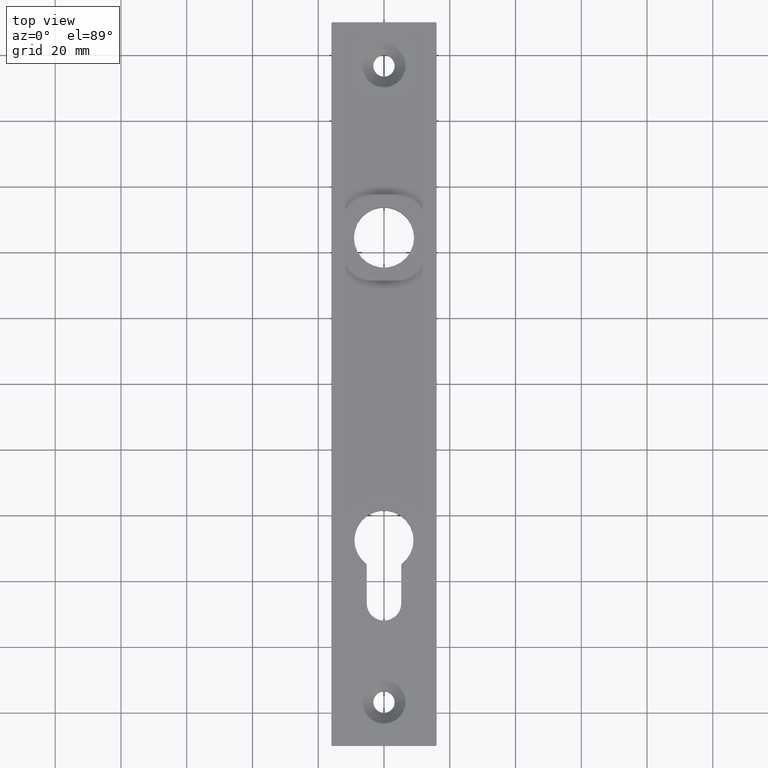
[diagram: clean part render]
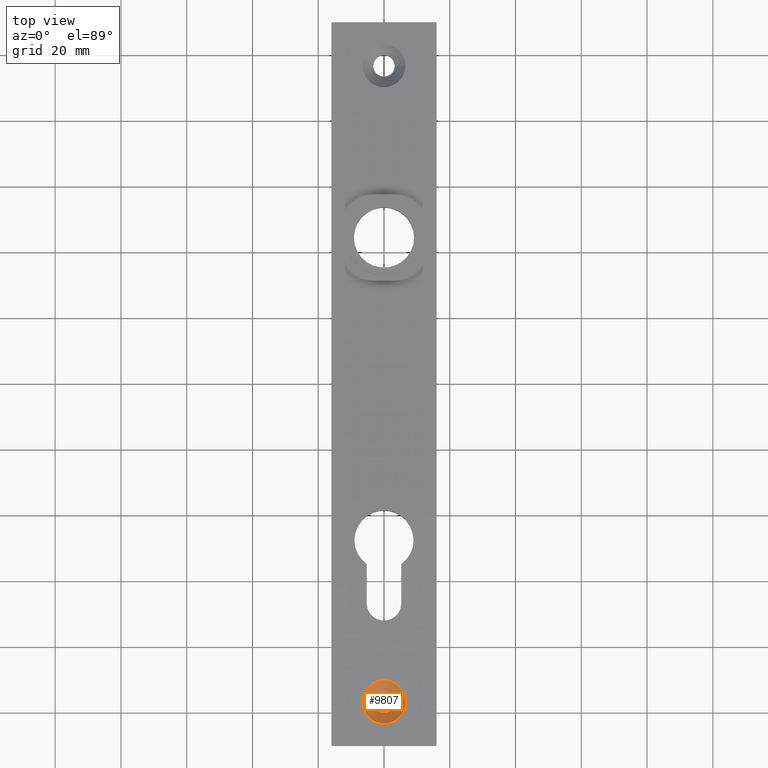
[diagram: same view with one face highlighted and labeled with its STEP entity id]
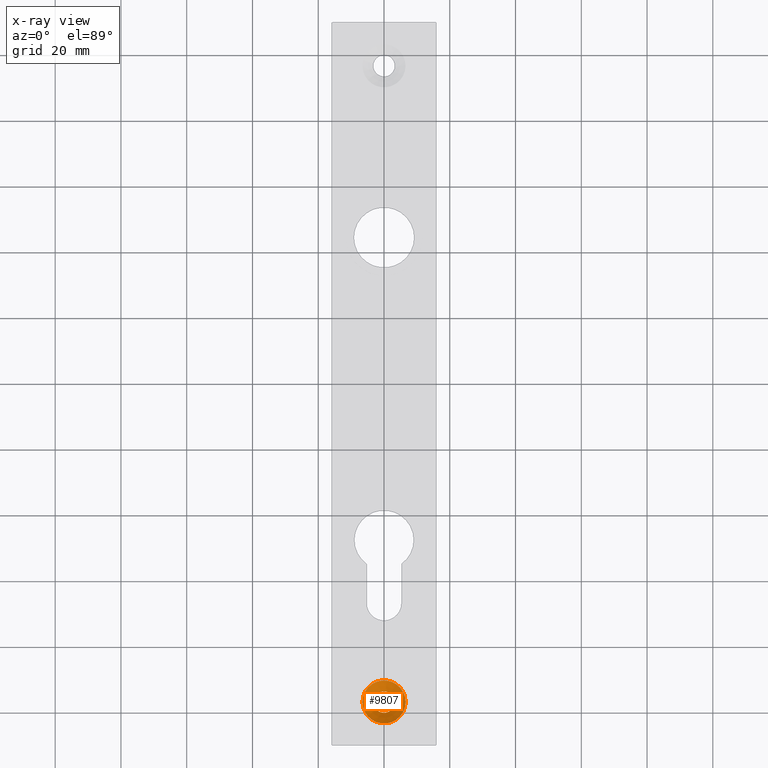
[diagram: x-ray of the same camera — body ghosted, the highlighted face saturated]
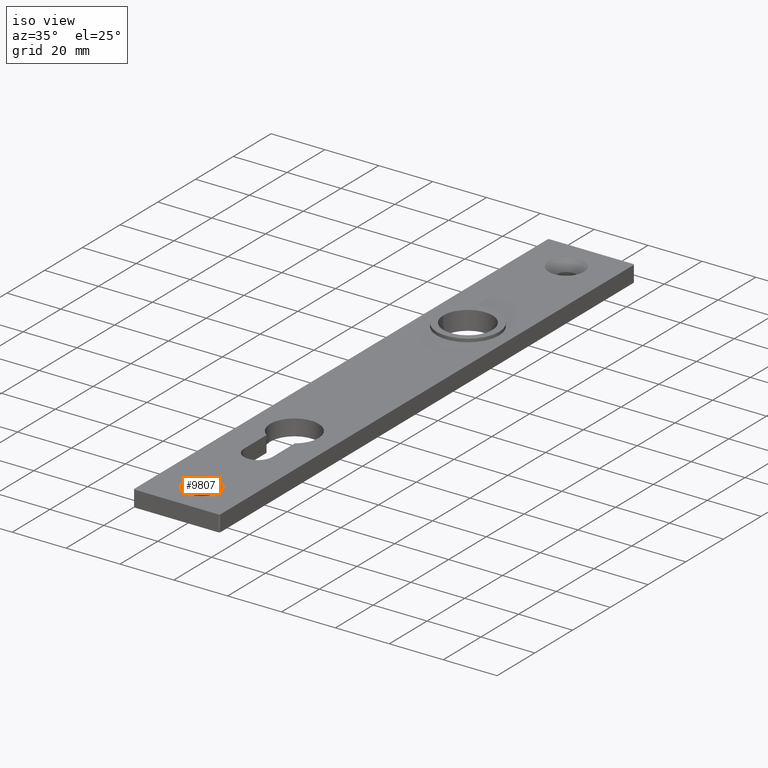
[diagram: same view with one face highlighted and labeled with its STEP entity id]
A machine part, top view. The second image highlights one B-rep face of the part: STEP entity #9807.
The next image is the same camera in x-ray: the body ghosted, the highlighted face saturated — about 0% of this face is hidden behind the body in this view.
A second angle (iso view) of the same face is appended — the face is thin or edge-on in the first view.
In plain terms, the highlighted conical surface has half-angle 45 deg.
Its self-contained STEP definition (entity closure, byte-faithful):
#376 = CARTESIAN_POINT ( 'NONE',  ( 0.0000000000000000000, -96.75000000000001400, 2.699999999999962400 ) ) ;
#822 = ORIENTED_EDGE ( 'NONE', *, *, #8629, .F. ) ;
#2166 = AXIS2_PLACEMENT_3D ( 'NONE', #3479, #7130, #7947 ) ;
#2226 = DIRECTION ( 'NONE',  ( 0.0000000000000000000, 0.0000000000000000000, 1.000000000000000000 ) ) ;
#2327 = CIRCLE ( 'NONE', #3398, 6.550000000000055800 ) ;
#3296 = DIRECTION ( 'NONE',  ( 0.0000000000000000000, -0.0000000000000000000, -1.000000000000000000 ) ) ;
#3398 = AXIS2_PLACEMENT_3D ( 'NONE', #11502, #3296, #11464 ) ;
#3479 = CARTESIAN_POINT ( 'NONE',  ( 0.0000000000000000000, -96.75000000000001400, 2.699999999999962400 ) ) ;
#3771 = AXIS2_PLACEMENT_3D ( 'NONE', #376, #2226, #9423 ) ;
#3836 = VERTEX_POINT ( 'NONE', #4715 ) ;
#4715 = CARTESIAN_POINT ( 'NONE',  ( 6.550000000000055800, -96.75000000000001400, 6.000000000000000000 ) ) ;
#5231 = VERTEX_POINT ( 'NONE', #11016 ) ;
#7130 = DIRECTION ( 'NONE',  ( 0.0000000000000000000, 0.0000000000000000000, 1.000000000000000000 ) ) ;
#7345 = FACE_BOUND ( 'NONE', #9693, .T. ) ;
#7749 = EDGE_LOOP ( 'NONE', ( #822 ) ) ;
#7947 = DIRECTION ( 'NONE',  ( 1.000000000000000000, 0.0000000000000000000, 0.0000000000000000000 ) ) ;
#8453 = CONICAL_SURFACE ( 'NONE', #3771, 3.250000000000001800, 0.7853981633974508300 ) ;
#8482 = CIRCLE ( 'NONE', #2166, 3.250000000000001800 ) ;
#8629 = EDGE_CURVE ( 'NONE', #3836, #3836, #2327, .T. ) ;
#8696 = EDGE_CURVE ( 'NONE', #5231, #5231, #8482, .T. ) ;
#9292 = FACE_OUTER_BOUND ( 'NONE', #7749, .T. ) ;
#9423 = DIRECTION ( 'NONE',  ( 1.000000000000000000, 0.0000000000000000000, 0.0000000000000000000 ) ) ;
#9693 = EDGE_LOOP ( 'NONE', ( #10818 ) ) ;
#9807 = ADVANCED_FACE ( 'NONE', ( #9292, #7345 ), #8453, .F. ) ;
#10818 = ORIENTED_EDGE ( 'NONE', *, *, #8696, .F. ) ;
#11016 = CARTESIAN_POINT ( 'NONE',  ( 3.250000000000001800, -96.75000000000001400, 2.699999999999962400 ) ) ;
#11464 = DIRECTION ( 'NONE',  ( 1.000000000000000000, 0.0000000000000000000, 0.0000000000000000000 ) ) ;
#11502 = CARTESIAN_POINT ( 'NONE',  ( 0.0000000000000000000, -96.75000000000001400, 6.000000000000000000 ) ) ;